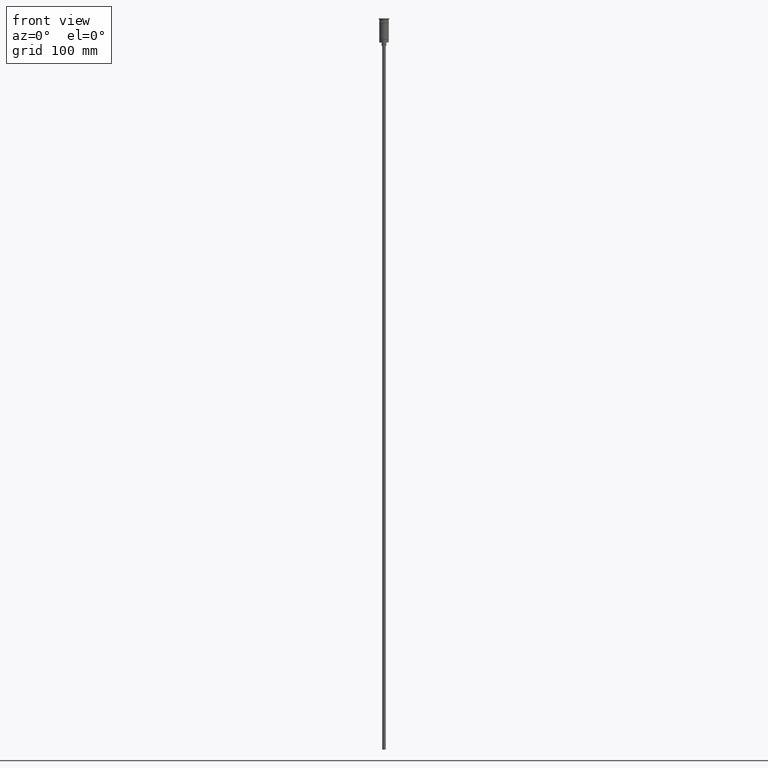
[diagram: clean part render]
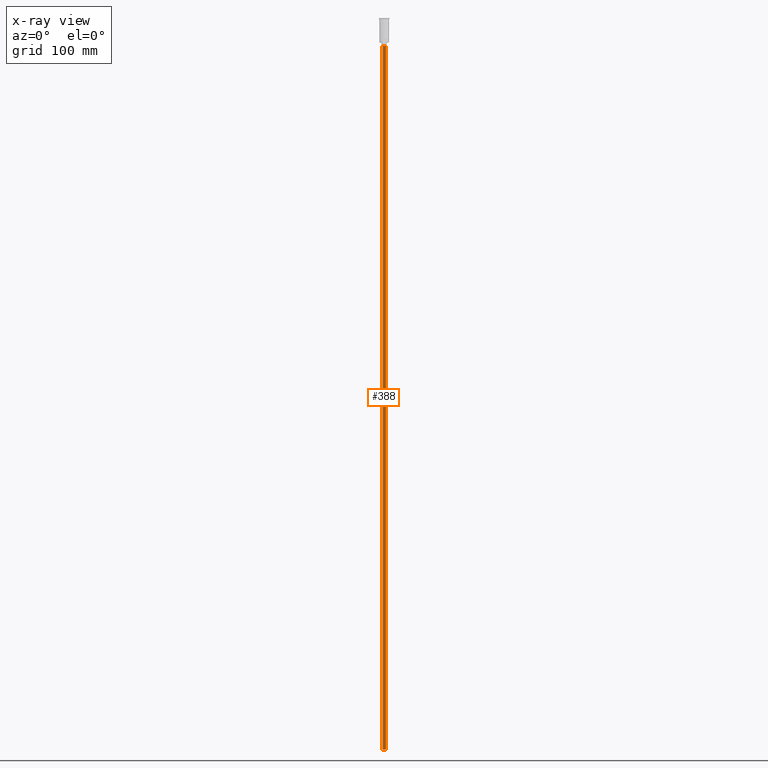
[diagram: x-ray — body ghosted, one internal face saturated and labeled with its STEP entity id]
A machine part, front view, then the same camera in x-ray: the body is ghosted and one INTERNAL B-rep face — a face not visible from any outside direction — is saturated and labeled: STEP entity #388.
In plain terms, the highlighted cylindrical surface (edge-blend (fillet) strip) has radius 1.5 mm, axis along (-0, -0, 1).
Its self-contained STEP definition (entity closure, byte-faithful):
#54 = LINE ( 'NONE', #1309, #618 ) ;
#63 = CARTESIAN_POINT ( 'NONE',  ( 1.500000000000000222, 0.000000000000000000, -620.4999999999998863 ) ) ;
#67 = ORIENTED_EDGE ( 'NONE', *, *, #326, .T. ) ;
#192 = EDGE_CURVE ( 'NONE', #1167, #464, #1144, .T. ) ;
#216 = DIRECTION ( 'NONE',  ( -1.000000000000000000, 0.000000000000000000, 0.000000000000000000 ) ) ;
#220 = ORIENTED_EDGE ( 'NONE', *, *, #894, .F. ) ;
#269 = ORIENTED_EDGE ( 'NONE', *, *, #798, .F. ) ;
#326 = EDGE_CURVE ( 'NONE', #464, #1327, #1288, .T. ) ;
#372 = VERTEX_POINT ( 'NONE', #63 ) ;
#388 = ADVANCED_FACE ( 'NONE', ( #1073 ), #431, .T. ) ;
#430 = AXIS2_PLACEMENT_3D ( 'NONE', #1540, #1179, #575 ) ;
#431 = CYLINDRICAL_SURFACE ( 'NONE', #1366, 1.500000000000000222 ) ;
#464 = VERTEX_POINT ( 'NONE', #1093 ) ;
#548 = DIRECTION ( 'NONE',  ( -0.000000000000000000, -0.000000000000000000, 1.000000000000000000 ) ) ;
#575 = DIRECTION ( 'NONE',  ( -1.000000000000000000, 0.000000000000000000, 0.000000000000000000 ) ) ;
#618 = VECTOR ( 'NONE', #548, 1000.000000000000000 ) ;
#772 = AXIS2_PLACEMENT_3D ( 'NONE', #1324, #1457, #216 ) ;
#778 = CARTESIAN_POINT ( 'NONE',  ( 1.500000000000000222, 0.000000000000000000, -23.49999999999999645 ) ) ;
#798 = EDGE_CURVE ( 'NONE', #372, #1327, #54, .T. ) ;
#821 = CIRCLE ( 'NONE', #772, 1.500000000000000222 ) ;
#852 = CARTESIAN_POINT ( 'NONE',  ( -1.500000000000000222, 1.836970198721030181E-16, -620.4999999999998863 ) ) ;
#886 = EDGE_LOOP ( 'NONE', ( #220, #1195, #67, #269 ) ) ;
#894 = EDGE_CURVE ( 'NONE', #1167, #372, #821, .T. ) ;
#1047 = DIRECTION ( 'NONE',  ( -0.000000000000000000, -0.000000000000000000, 1.000000000000000000 ) ) ;
#1066 = CARTESIAN_POINT ( 'NONE',  ( 0.000000000000000000, 0.000000000000000000, -620.4999999999998863 ) ) ;
#1073 = FACE_OUTER_BOUND ( 'NONE', #886, .T. ) ;
#1093 = CARTESIAN_POINT ( 'NONE',  ( -1.500000000000000222, 1.836970198721030181E-16, -23.49999999999999645 ) ) ;
#1125 = CARTESIAN_POINT ( 'NONE',  ( -1.500000000000000222, 1.836970198721030181E-16, -620.4999999999998863 ) ) ;
#1144 = LINE ( 'NONE', #1125, #1568 ) ;
#1167 = VERTEX_POINT ( 'NONE', #852 ) ;
#1179 = DIRECTION ( 'NONE',  ( 0.000000000000000000, 0.000000000000000000, -1.000000000000000000 ) ) ;
#1195 = ORIENTED_EDGE ( 'NONE', *, *, #192, .T. ) ;
#1264 = DIRECTION ( 'NONE',  ( -0.000000000000000000, -0.000000000000000000, 1.000000000000000000 ) ) ;
#1288 = CIRCLE ( 'NONE', #430, 1.500000000000000222 ) ;
#1309 = CARTESIAN_POINT ( 'NONE',  ( 1.500000000000000222, 0.000000000000000000, -620.4999999999998863 ) ) ;
#1324 = CARTESIAN_POINT ( 'NONE',  ( 0.000000000000000000, 0.000000000000000000, -620.4999999999998863 ) ) ;
#1327 = VERTEX_POINT ( 'NONE', #778 ) ;
#1366 = AXIS2_PLACEMENT_3D ( 'NONE', #1066, #1047, #1558 ) ;
#1457 = DIRECTION ( 'NONE',  ( 0.000000000000000000, 0.000000000000000000, -1.000000000000000000 ) ) ;
#1540 = CARTESIAN_POINT ( 'NONE',  ( 0.000000000000000000, 0.000000000000000000, -23.49999999999999645 ) ) ;
#1558 = DIRECTION ( 'NONE',  ( 1.000000000000000000, 0.000000000000000000, 0.000000000000000000 ) ) ;
#1568 = VECTOR ( 'NONE', #1264, 1000.000000000000000 ) ;